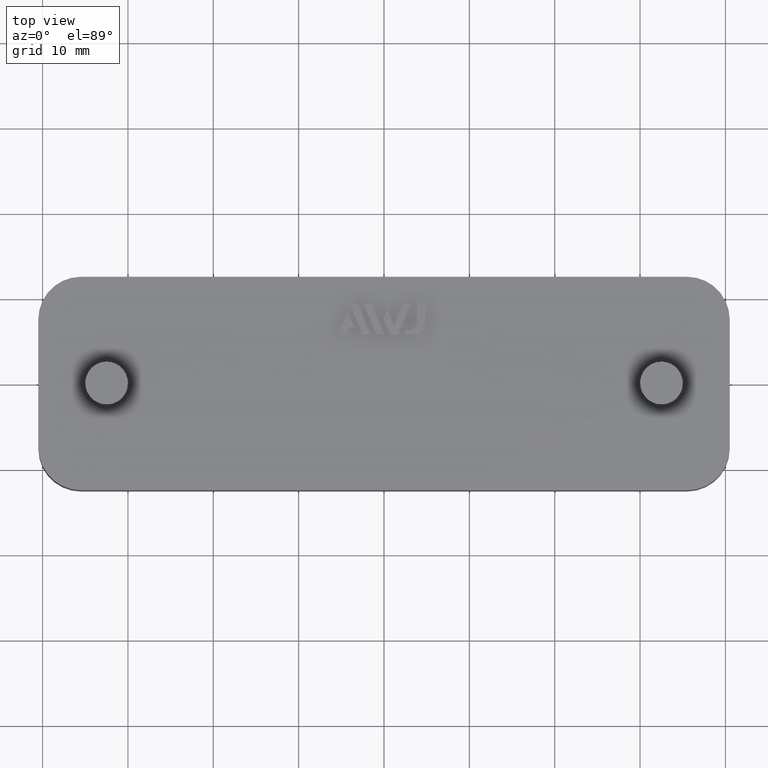
[diagram: clean part render]
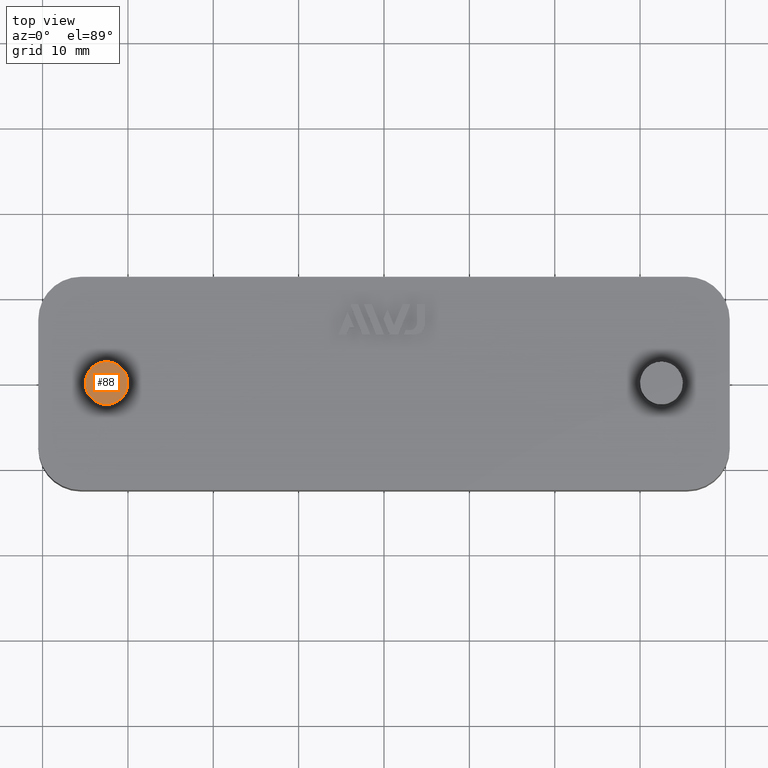
[diagram: same view with one face highlighted and labeled with its STEP entity id]
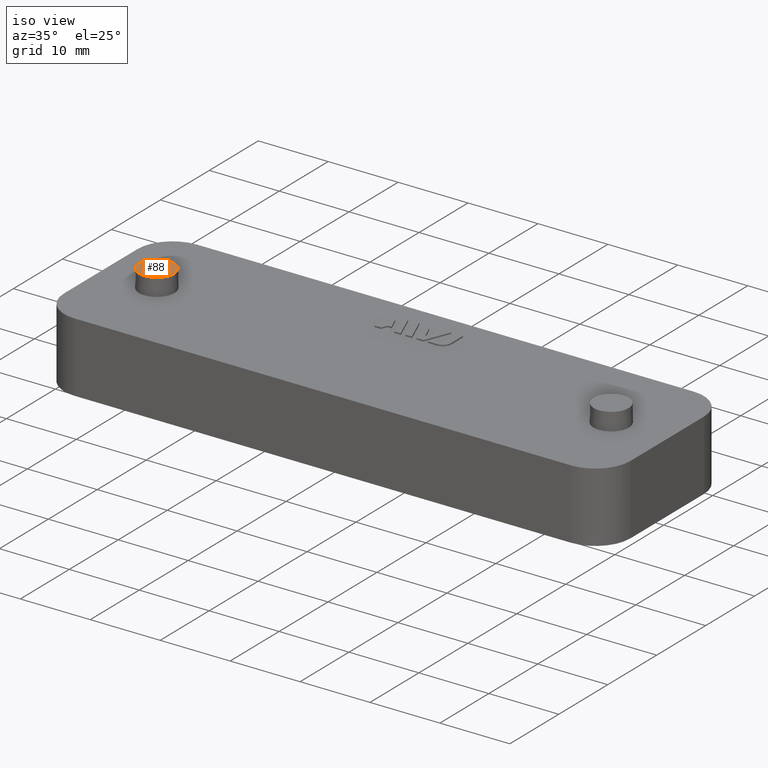
[diagram: same view with one face highlighted and labeled with its STEP entity id]
A machine part, top view. The second image highlights one B-rep face of the part: STEP entity #88.
A second angle (iso view) of the same face is appended — the face is thin or edge-on in the first view.
In plain terms, the highlighted planar face has unit normal (0, -0, -1).
Its self-contained STEP definition (entity closure, byte-faithful):
#88 = ADVANCED_FACE( '', ( #603 ), #604, .F. );
#603 = FACE_OUTER_BOUND( '', #1539, .T. );
#604 = PLANE( '', #1540 );
#1539 = EDGE_LOOP( '', ( #2837 ) );
#1540 = AXIS2_PLACEMENT_3D( '', #2838, #2839, #2840 );
#2837 = ORIENTED_EDGE( '', *, *, #6263, .F. );
#2838 = CARTESIAN_POINT( '', ( -32.5000000000000, -1.60270830894954E-015, 12.5000000000000 ) );
#2839 = DIRECTION( '', ( 0.000000000000000, -6.12303176911189E-017, -1.00000000000000 ) );
#2840 = DIRECTION( '', ( 1.00000000000000, 6.12303176911188E-017, -3.74915180455534E-033 ) );
#6263 = EDGE_CURVE( '', #7736, #7736, #7737, .T. );
#7736 = VERTEX_POINT( '', #9939 );
#7737 = CIRCLE( '', #9940, 2.50000000000001 );
#9939 = CARTESIAN_POINT( '', ( -30.0000000000000, -1.44963251472174E-015, 12.5000000000000 ) );
#9940 = AXIS2_PLACEMENT_3D( '', #12119, #12120, #12121 );
#12119 = CARTESIAN_POINT( '', ( -32.5000000000000, -1.60270830894954E-015, 12.5000000000000 ) );
#12120 = DIRECTION( '', ( 4.37905770101503E-049, -6.12303176911189E-017, -1.00000000000000 ) );
#12121 = DIRECTION( '', ( 1.00000000000000, 6.12303176911188E-017, -3.74915180455534E-033 ) );